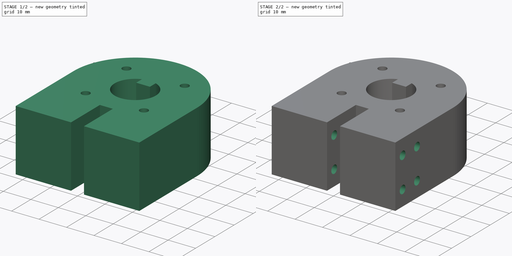
[diagram: build sequence overview — one tinted view per stage of 2, left to right]
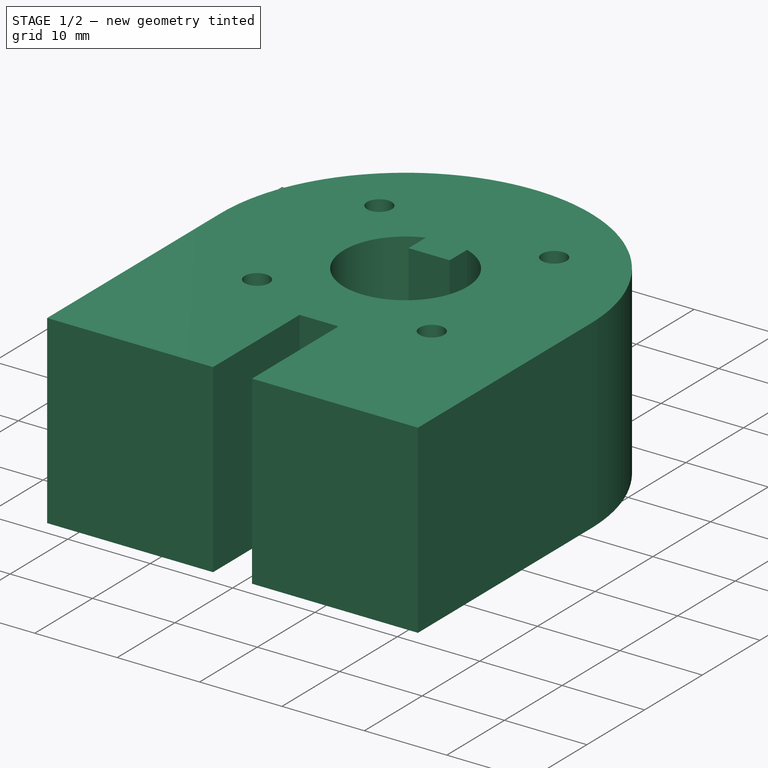
[diagram: stage 1 of 2 — iso view after this stage's code; geometry added in this stage tinted green]
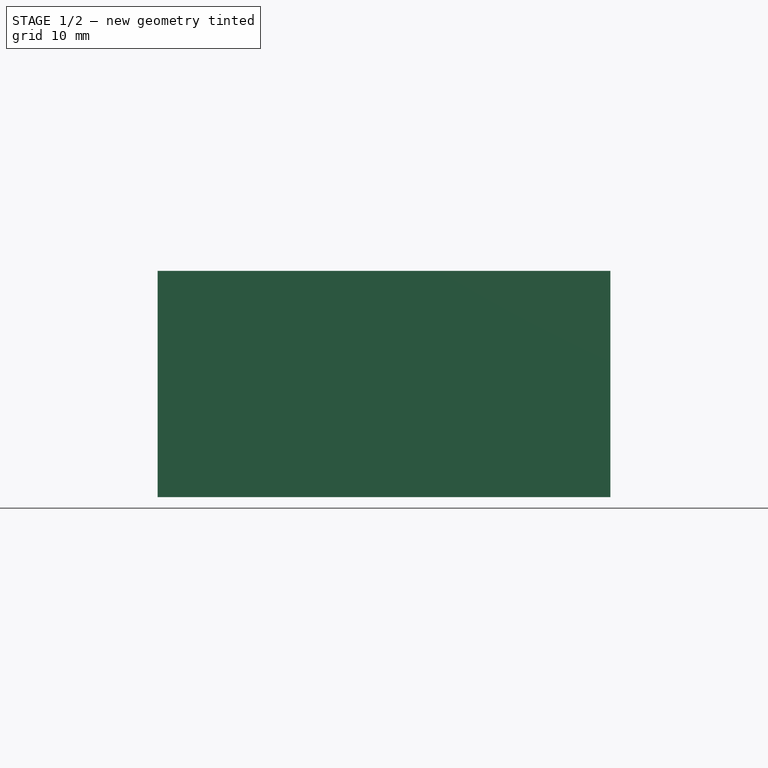
[diagram: stage 1 of 2 — front view after this stage's code; geometry added in this stage tinted green]
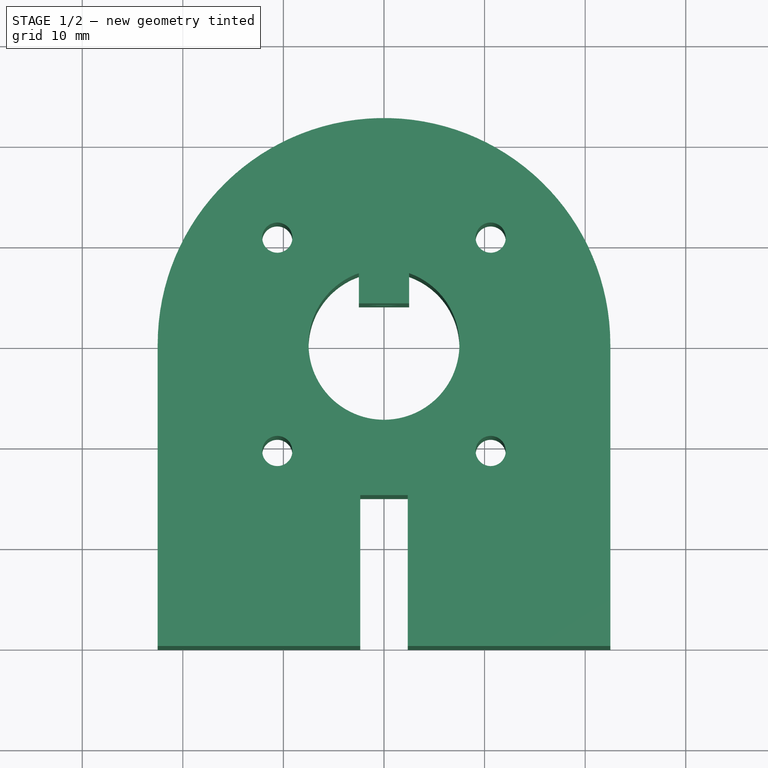
[diagram: stage 1 of 2 — top view after this stage's code; geometry added in this stage tinted green]
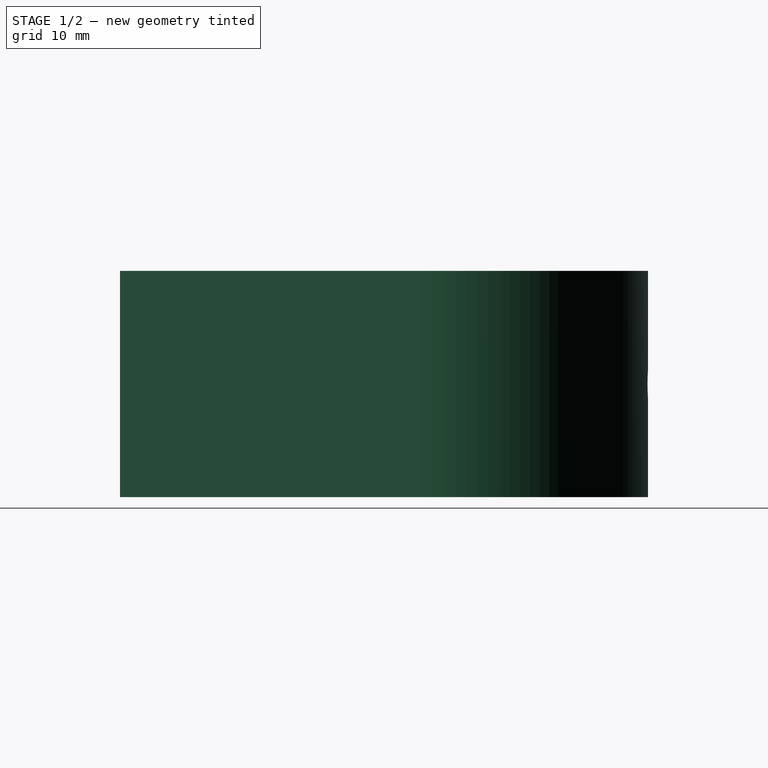
[diagram: stage 1 of 2 — right view after this stage's code; geometry added in this stage tinted green]
FCSTD DOCUMENT  (FreeCAD 0.14R3637 (Git))
Label: Vexta_motor_adapter_squared_real_measures
License: CC-BY 3.0
LicenseURL: http://creativecommons.org/licenses/by/3.0/
objects: Sketcher::SketchObject×5, PartDesign::Pocket×3, PartDesign::Pad×1
note: 13 computed .brp shape members not serialized (recipe doc carries the construction recipe); baked Part::Feature solids carry a one-line shape summary decoded from their .brp

FEATURE [Sketcher::SketchObject] Sketch
  sketch-geometry (26):
    g0: Circle [constr] CenterX=0 CenterY=0 CenterZ=0 NormalX=0 NormalY=0 NormalZ=1 Radius=15
    g1: LineSegment [constr] StartX=10.6066 StartY=10.6066 StartZ=0 EndX=-10.6066 EndY=10.6066 EndZ=0
    g2: LineSegment [constr] StartX=-10.6066 StartY=10.6066 StartZ=0 EndX=-10.6066 EndY=-10.6066 EndZ=0
    g3: LineSegment [constr] StartX=-10.6066 StartY=-10.6066 StartZ=0 EndX=10.6066 EndY=-10.6066 EndZ=0
    g4: LineSegment [constr] StartX=10.6066 StartY=-10.6066 StartZ=0 EndX=10.6066 EndY=10.6066 EndZ=0
    g5: Circle CenterX=-10.6066 CenterY=10.6066 CenterZ=0 NormalX=0 NormalY=0 NormalZ=1 Radius=1.5
    g6: Circle CenterX=-10.6066 CenterY=-10.6066 CenterZ=0 NormalX=0 NormalY=0 NormalZ=1 Radius=1.5
    g7: Circle CenterX=10.6066 CenterY=-10.6066 CenterZ=0 NormalX=0 NormalY=0 NormalZ=1 Radius=1.5
    g8: Circle CenterX=10.6066 CenterY=10.6066 CenterZ=0 NormalX=0 NormalY=0 NormalZ=1 Radius=1.5
    g9: ArcOfCircle CenterX=0 CenterY=0 CenterZ=0 NormalX=0 NormalY=0 NormalZ=1 Radius=7.5 StartAngle=1.91063 EndAngle=7.51414
    g10: LineSegment [constr] StartX=-2.5 StartY=7.07107 StartZ=0 EndX=2.5 EndY=7.07107 EndZ=0
    g11: LineSegment StartX=2.5 StartY=7.07107 StartZ=0 EndX=2.5 EndY=4.07107 EndZ=0
    g12: LineSegment StartX=2.5 StartY=4.07107 StartZ=0 EndX=-2.5 EndY=4.07107 EndZ=0
    g13: LineSegment StartX=-2.5 StartY=4.07107 StartZ=0 EndX=-2.5 EndY=7.07107 EndZ=0
    g14: ArcOfCircle CenterX=0 CenterY=0 CenterZ=0 NormalX=0 NormalY=0 NormalZ=1 Radius=22.5 StartAngle=0 EndAngle=3.14159
    g15: LineSegment [constr] StartX=-22.5 StartY=0 StartZ=0 EndX=22.5 EndY=0 EndZ=0
    g16: LineSegment StartX=22.5 StartY=1e-12 StartZ=0 EndX=22.5 EndY=-30 EndZ=0
    g17: LineSegment StartX=22.5 StartY=-30 StartZ=0 EndX=2.365 EndY=-30 EndZ=0
    g18: LineSegment StartX=-22.5 StartY=-30 StartZ=0 EndX=-22.5 EndY=0 EndZ=0
    g19: GeomPoint [constr] X=-22.5 Y=0 Z=0
    g20: LineSegment StartX=-2.365 StartY=-15 StartZ=0 EndX=2.365 EndY=-15 EndZ=0
    g21: LineSegment StartX=2.365 StartY=-15 StartZ=0 EndX=2.365 EndY=-30 EndZ=0
    g22: LineSegment StartX=-2.365 StartY=-30 StartZ=0 EndX=-2.365 EndY=-15 EndZ=0
    g23: Circle [constr] CenterX=0 CenterY=-47.6488 CenterZ=0 NormalX=0 NormalY=0 NormalZ=1 Radius=32.7343
    g24: LineSegment StartX=-2.365 StartY=-30 StartZ=0 EndX=-22.5 EndY=-30 EndZ=0
    g25: Circle [constr] CenterX=0 CenterY=0 CenterZ=0 NormalX=0 NormalY=0 NormalZ=1 Radius=22.5
  constraints (68):
    c: Coincident(g1,g2)
    c: Coincident(g2,g3)
    c: Coincident(g3,g4)
    c: Coincident(g4,g1)
    c: Horizontal(g1)
    c: Horizontal(g3)
    c: Vertical(g2)
    c: Vertical(g4)
    c: PointOnObject(g1,g0)
    c: PointOnObject(g2,g0)
    c: PointOnObject(g1,g0)
    c: Coincident(g-1,g0)
    c: Equal(g2,g1)
    c: Coincident(g5,g1)
    c: Coincident(g6,g2)
    c: Coincident(g8,g1)
    c: Coincident(g7,g3)
    c: Equal(g8,g7)
    c: Equal(g7,g5)
    c: Equal(g5,g6)
    c: Coincident(g9,g-1)
    c: Coincident(g11,g12)
    c: Coincident(g12,g13)
    c: Horizontal(g10)
    c: Horizontal(g12)
    c: Vertical(g11)
    c: Vertical(g13)
    c: PointOnObject(g13,g9)
    c: PointOnObject(g11,g9)
    c: Coincident(g14,g-1)
    c: Coincident(g9,g10)
    c: Coincident(g9,g10)
    c: Coincident(g16,g17)
    c: Coincident(g24,g18)
    c: Coincident(g18,g15)
    c: Horizontal(g15)
    c: Horizontal(g17)
    c: Vertical(g16)
    c: Vertical(g18)
    c: PointOnObject(g16,g14)
    c: Equal(g12,g10)
    c: Coincident(g13,g9)
    c: PointOnObject(g19,g-1)
    c: PointOnObject(g19,g14)
    c: Coincident(g15,g19)
    c: Coincident(g20,g21)
    c: Coincident(g22,g20)
    c: Horizontal(g20)
    c: Vertical(g21)
    c: Vertical(g22)
    c: PointOnObject(g23,g-2)
    c: PointOnObject(g20,g23)
    c: PointOnObject(g20,g23)
    c: Tangent(g17,g24)
    c: Coincident(g22,g24)
    c: Coincident(g14,g15)
    c: PointOnObject(g14,g15)
    c: Radius(g5) = 1.5
    c: DistanceX(g10) = 5
    c: Radius(g9) = 7.5
    c: DistanceY(g11) = -3
    c: Radius(g0) = 15
    c: Radius(g14) = 22.5
    c: DistanceX(g20) = 4.73
    c: Coincident(g25,g-1)
    c: Equal(g14,g25)
    c: Tangent(g20,g0)
    c: DistanceY(g22) = 15
FEATURE [PartDesign::Pad] Pad
  Length = 22.5
  Length2 = 100
  Sketch = -> Sketch
  Type = 0
FEATURE [Sketcher::SketchObject] Sketch001
  ExternalGeometry = -> [Pad]
  Placement = pos=(0,4.07107,0) rot=(1,0,0;1.5708rad)
  Support = -> Pad [Face11]
  sketch-geometry (2):
    g0: Circle [constr] CenterX=0 CenterY=11.25 CenterZ=0 NormalX=0 NormalY=0 NormalZ=1 Radius=11.5244
    g1: Circle CenterX=0 CenterY=11.25 CenterZ=0 NormalX=0 NormalY=0 NormalZ=1 Radius=1.5
  constraints (5):
    c: PointOnObject(g0,g-2)
    c: PointOnObject(g-3,g0)
    c: PointOnObject(g-4,g0)
    c: Coincident(g1,g0)
    c: Radius(g1) = 1.5
FEATURE [PartDesign::Pocket] Pocket
  Length = 5
  Sketch = -> Sketch001
  Type = 1
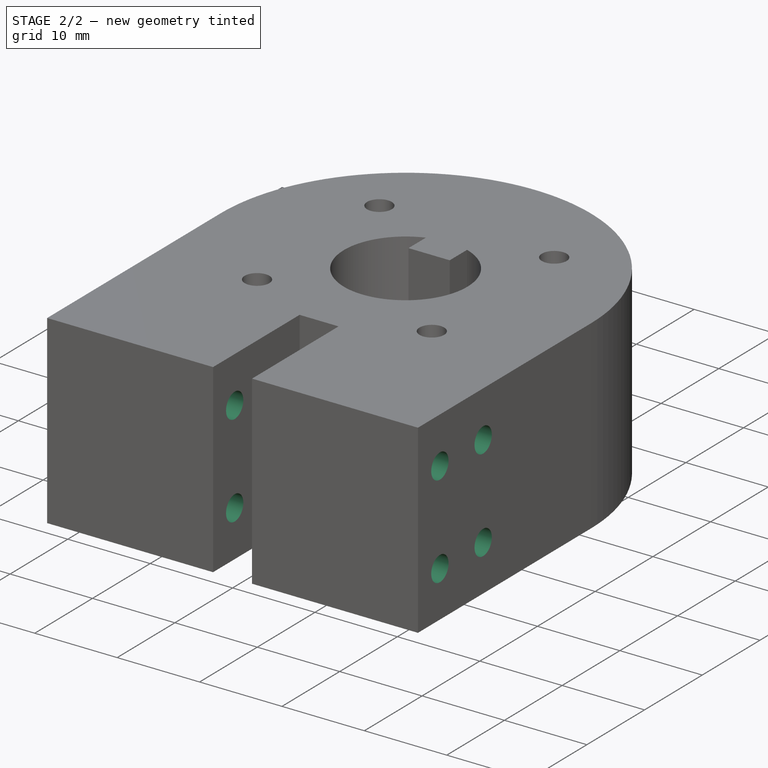
[diagram: stage 2 of 2 — iso view after this stage's code; geometry added in this stage tinted green]
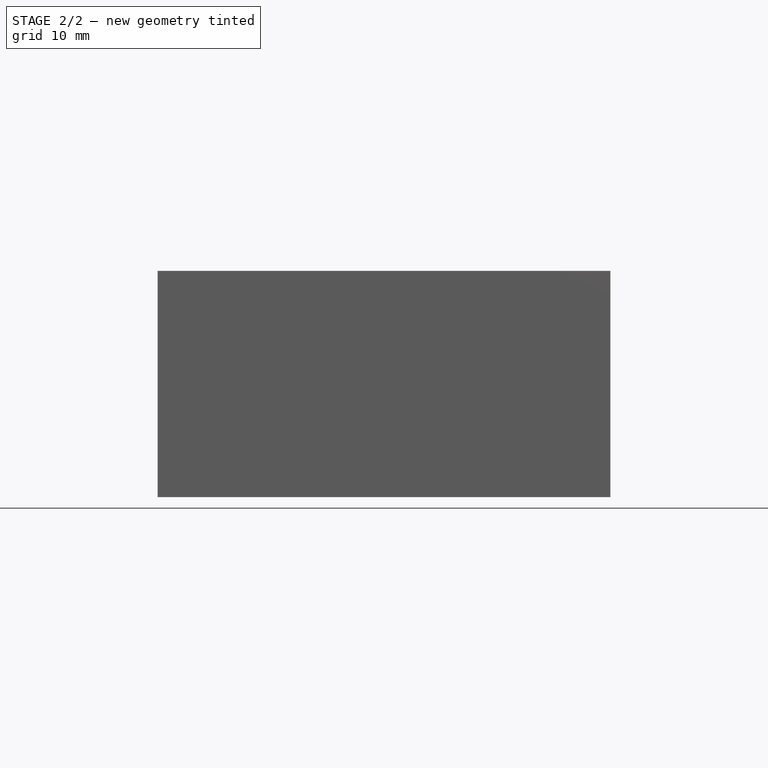
[diagram: stage 2 of 2 — front view after this stage's code; geometry added in this stage tinted green]
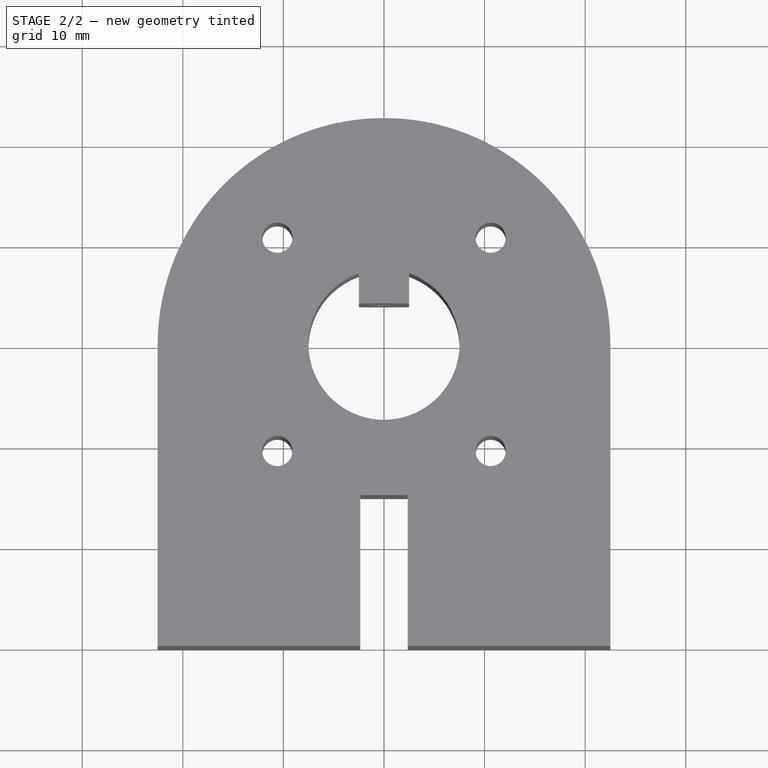
[diagram: stage 2 of 2 — top view after this stage's code; geometry added in this stage tinted green]
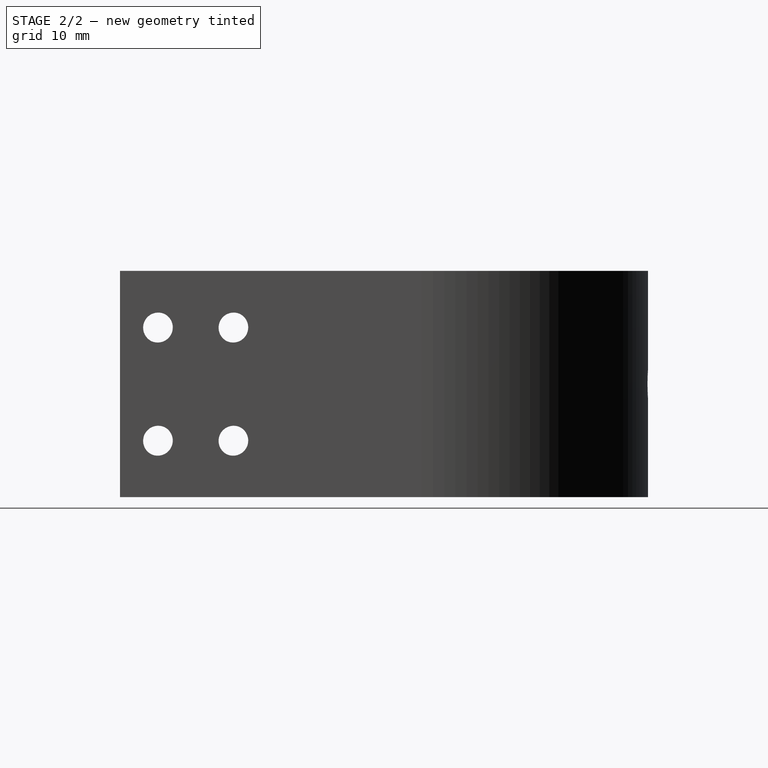
[diagram: stage 2 of 2 — right view after this stage's code; geometry added in this stage tinted green]
FEATURE [Sketcher::SketchObject] Sketch003
  Placement = pos=(-2.365,0,0) rot=(0.57735,0.57735,0.57735;2.0944rad)
FEATURE [Sketcher::SketchObject] Sketch004
  Placement = pos=(-2.365,0,0) rot=(0.57735,0.57735,0.57735;2.0944rad)
  Support = -> Pocket [Face1]
  sketch-geometry (12):
    g0: Circle [constr] CenterX=-15 CenterY=11.25 CenterZ=0 NormalX=0 NormalY=0 NormalZ=1 Radius=11.25
    g1: Circle [constr] CenterX=-30 CenterY=11.25 CenterZ=0 NormalX=0 NormalY=0 NormalZ=1 Radius=11.25
    g2: Circle [constr] CenterX=-22.5 CenterY=22.5 CenterZ=0 NormalX=0 NormalY=0 NormalZ=1 Radius=7.5
    g3: Circle [constr] CenterX=-22.5 CenterY=0 CenterZ=0 NormalX=0 NormalY=0 NormalZ=1 Radius=7.5
    g4: Circle [constr] CenterX=-26.25 CenterY=16.875 CenterZ=0 NormalX=0 NormalY=0 NormalZ=1 Radius=6.76041
    g5: Circle [constr] CenterX=-18.75 CenterY=16.875 CenterZ=0 NormalX=0 NormalY=0 NormalZ=1 Radius=6.76041
    g6: Circle [constr] CenterX=-26.25 CenterY=5.625 CenterZ=0 NormalX=0 NormalY=0 NormalZ=1 Radius=6.76041
    g7: Circle [constr] CenterX=-18.75 CenterY=5.625 CenterZ=0 NormalX=0 NormalY=0 NormalZ=1 Radius=6.76041
    g8: Circle CenterX=-26.25 CenterY=16.875 CenterZ=0 NormalX=0 NormalY=0 NormalZ=1 Radius=1.5
    g9: Circle CenterX=-18.75 CenterY=16.875 CenterZ=0 NormalX=0 NormalY=0 NormalZ=1 Radius=1.5
    g10: Circle CenterX=-18.75 CenterY=5.625 CenterZ=0 NormalX=0 NormalY=0 NormalZ=1 Radius=1.5
    g11: Circle CenterX=-26.25 CenterY=5.625 CenterZ=0 NormalX=0 NormalY=0 NormalZ=1 Radius=1.5
  constraints (16):
    c: PointOnObject(g2,g4)
    c: PointOnObject(g1,g4)
    c: PointOnObject(g0,g5)
    c: PointOnObject(g2,g5)
    c: PointOnObject(g3,g6)
    c: PointOnObject(g1,g6)
    c: PointOnObject(g0,g7)
    c: PointOnObject(g3,g7)
    c: Equal(g8,g9)
    c: Equal(g9,g10)
    c: Equal(g10,g11)
    c: Coincident(g4,g8)
    c: Coincident(g9,g5)
    c: Coincident(g7,g10)
    c: Coincident(g11,g6)
    c: Radius(g9) = 1.5
FEATURE [PartDesign::Pocket] Pocket001
  Length = 5
  Sketch = -> Sketch004
  Type = 1
FEATURE [Sketcher::SketchObject] Sketch005  label="Parametrized side holes"
  Placement = pos=(2.365,0,0) rot=(0.57735,-0.57735,-0.57735;2.0944rad)
  Support = -> Pocket001 [Face11]
  sketch-geometry (24):
    g0: LineSegment [constr] StartX=18.695 StartY=16.8475 StartZ=0 EndX=26.195 EndY=16.8475 EndZ=0
    g1: LineSegment [constr] StartX=26.195 StartY=16.8475 StartZ=0 EndX=26.195 EndY=5.59748 EndZ=0
    g2: LineSegment [constr] StartX=26.195 StartY=5.59748 StartZ=0 EndX=18.695 EndY=5.59748 EndZ=0
    g3: LineSegment [constr] StartX=18.695 StartY=5.59748 StartZ=0 EndX=18.695 EndY=16.8475 EndZ=0
    g4: Circle CenterX=18.695 CenterY=16.8475 CenterZ=0 NormalX=0 NormalY=0 NormalZ=1 Radius=1.5
    g5: Circle CenterX=26.195 CenterY=16.8475 CenterZ=0 NormalX=0 NormalY=0 NormalZ=1 Radius=1.5
    g6: Circle CenterX=18.695 CenterY=5.59748 CenterZ=0 NormalX=0 NormalY=0 NormalZ=1 Radius=1.5
    g7: Circle CenterX=26.195 CenterY=5.59748 CenterZ=0 NormalX=0 NormalY=0 NormalZ=1 Radius=1.5
    g8: Circle [constr] CenterX=22.445 CenterY=11.2225 CenterZ=0 NormalX=0 NormalY=0 NormalZ=1 Radius=6.76041
    g9: Circle [constr] CenterX=22.445 CenterY=11.2225 CenterZ=0 NormalX=0 NormalY=0 NormalZ=1 Radius=13.5208
    g10: LineSegment [constr] StartX=14.945 StartY=22.4725 StartZ=0 EndX=29.945 EndY=22.4725 EndZ=0
    g11: LineSegment [constr] StartX=29.945 StartY=22.4725 StartZ=0 EndX=29.945 EndY=-0.027515 EndZ=0
    g12: LineSegment [constr] StartX=29.945 StartY=-0.027515 StartZ=0 EndX=14.945 EndY=-0.027515 EndZ=0
    g13: LineSegment [constr] StartX=14.945 StartY=-0.027515 StartZ=0 EndX=14.945 EndY=22.4725 EndZ=0
    g14: Circle [constr] CenterX=18.695 CenterY=11.2225 CenterZ=0 NormalX=0 NormalY=0 NormalZ=1 Radius=5.625
    g15: Circle [constr] CenterX=26.195 CenterY=11.2225 CenterZ=0 NormalX=0 NormalY=0 NormalZ=1 Radius=5.625
    g16: Circle [constr] CenterX=14.945 CenterY=11.2225 CenterZ=0 NormalX=0 NormalY=0 NormalZ=1 Radius=11.25
    g17: LineSegment [constr] StartX=14.945 StartY=11.2225 StartZ=0 EndX=18.695 EndY=11.2225 EndZ=0
    g18: Circle [constr] CenterX=29.945 CenterY=11.2225 CenterZ=0 NormalX=0 NormalY=0 NormalZ=1 Radius=11.25
    g19: LineSegment [constr] StartX=18.695 StartY=11.2225 StartZ=0 EndX=22.445 EndY=11.2225 EndZ=0
    g20: Circle [constr] CenterX=22.445 CenterY=16.8475 CenterZ=0 NormalX=0 NormalY=0 NormalZ=1 Radius=3.75
    g21: Circle [constr] CenterX=22.445 CenterY=22.4725 CenterZ=0 NormalX=0 NormalY=0 NormalZ=1 Radius=7.5
    g22: LineSegment [constr] StartX=22.445 StartY=22.4725 StartZ=0 EndX=22.445 EndY=16.8475 EndZ=0
    g23: LineSegment [constr] StartX=22.445 StartY=11.2225 StartZ=0 EndX=22.445 EndY=16.8475 EndZ=0
  constraints (62):
    c: Coincident(g0,g1)
    c: Coincident(g1,g2)
    c: Coincident(g2,g3)
    c: Coincident(g3,g0)
    c: Horizontal(g0)
    c: Horizontal(g2)
    c: Vertical(g1)
    c: Vertical(g3)
    c: Coincident(g4,g0)
    c: Coincident(g5,g0)
    c: Coincident(g6,g2)
    c: Coincident(g7,g1)
    c: Equal(g4,g5)
    c: Equal(g5,g7)
    c: Equal(g7,g6)
    c: PointOnObject(g0,g8)
    c: PointOnObject(g0,g8)
    c: PointOnObject(g1,g8)
    c: Coincident(g9,g8)
    c: Coincident(g10,g11)
    c: Coincident(g11,g12)
    c: Coincident(g12,g13)
    c: Coincident(g13,g10)
    c: Horizontal(g10)
    c: Horizontal(g12)
    c: Vertical(g11)
    c: Vertical(g13)
    c: PointOnObject(g10,g9)
    c: PointOnObject(g12,g9)
    c: PointOnObject(g11,g9)
    c: Radius(g5) = 1.5
    c: PointOnObject(g14,g3)
    c: PointOnObject(g0,g14)
    c: PointOnObject(g2,g14)
    c: PointOnObject(g15,g1)
    c: PointOnObject(g0,g15)
    c: PointOnObject(g1,g15)
    c: PointOnObject(g16,g13)
    c: PointOnObject(g10,g16)
    c: PointOnObject(g12,g16)
    c: Coincident(g17,g16)
    c: Coincident(g17,g14)
    c: PointOnObject(g18,g11)
    c: PointOnObject(g10,g18)
    c: PointOnObject(g11,g18)
    c: Coincident(g19,g14)
    c: Coincident(g19,g8)
    c: Equal(g17,g19)
    c: PointOnObject(g20,g0)
    c: PointOnObject(g0,g20)
    c: PointOnObject(g0,g20)
    c: PointOnObject(g21,g10)
    c: PointOnObject(g10,g21)
    c: PointOnObject(g10,g21)
    c: Coincident(g22,g21)
    c: Coincident(g22,g20)
    c: Coincident(g23,g8)
    c: Coincident(g23,g20)
    c: Equal(g22,g23)
    c: DistanceX(g0) = 7.5
    c: DistanceY(g3) = 11.25
    c: DistanceY(g0,g10) = 5.625
FEATURE [PartDesign::Pocket] Pocket002
  Length = 5
  Sketch = -> Sketch005
  Type = 1
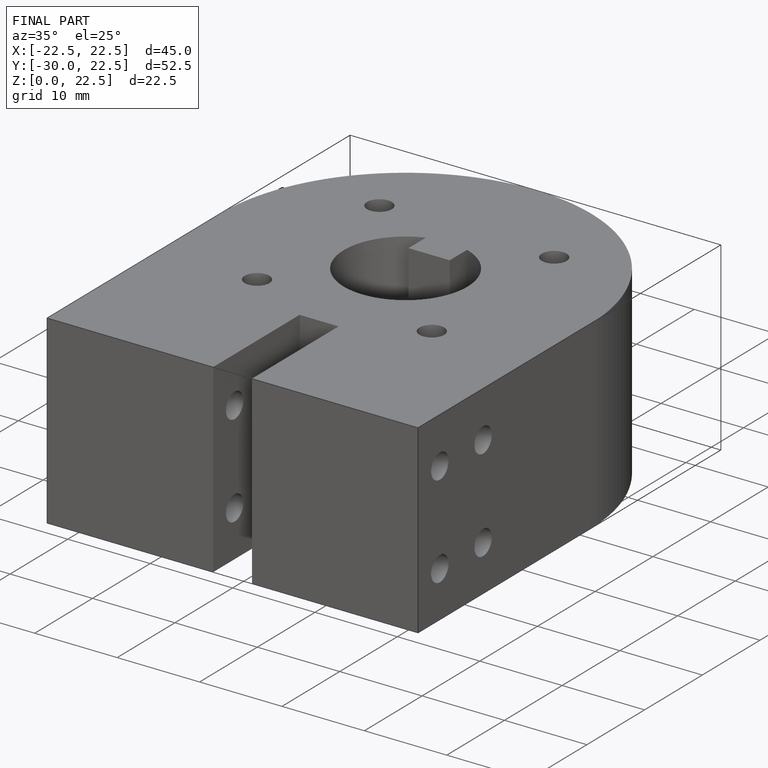
[diagram: finished part — iso view with bounding-box wireframe]
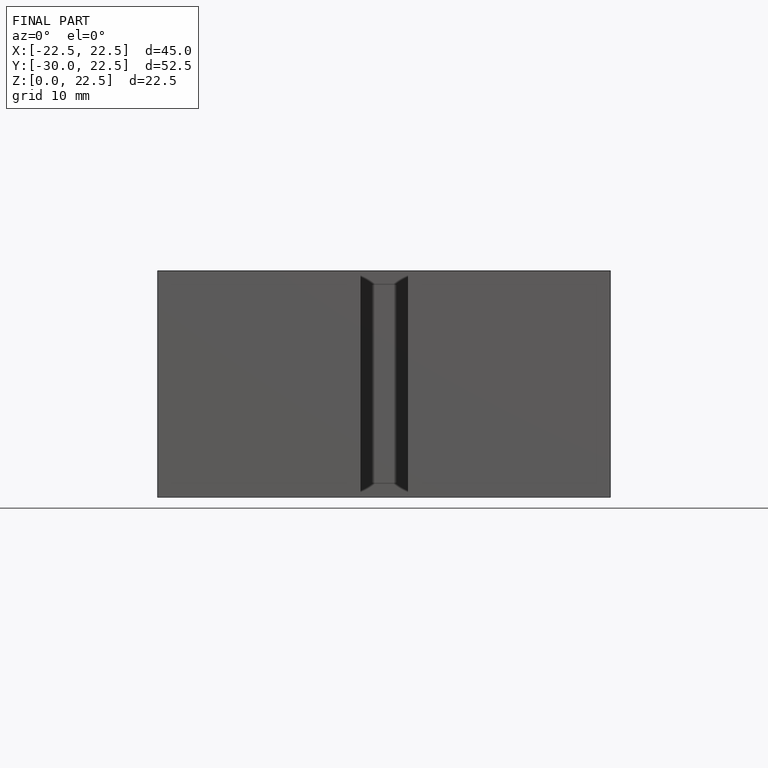
[diagram: finished part — front view with bounding-box wireframe]
